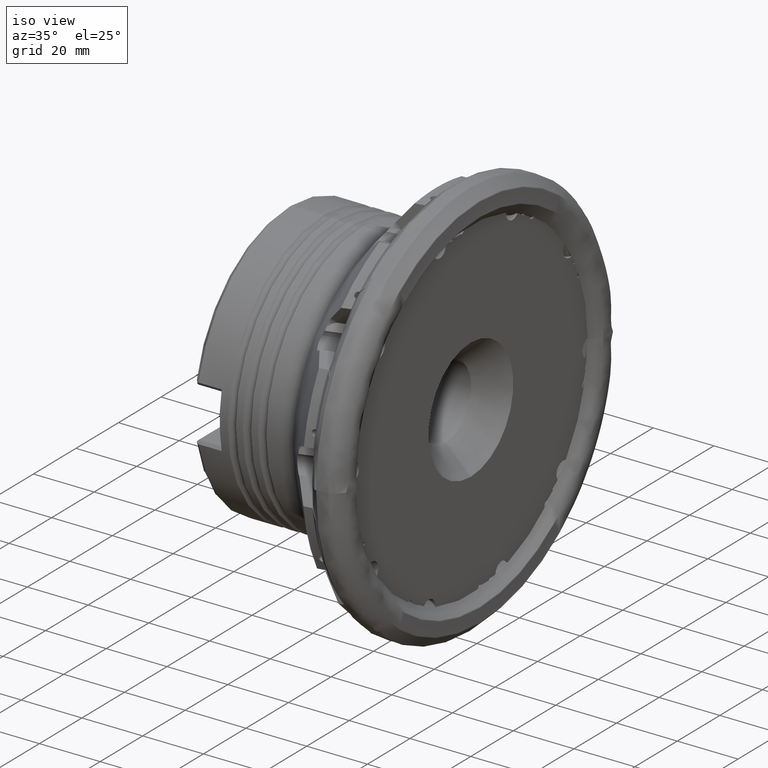
[diagram: clean part render]
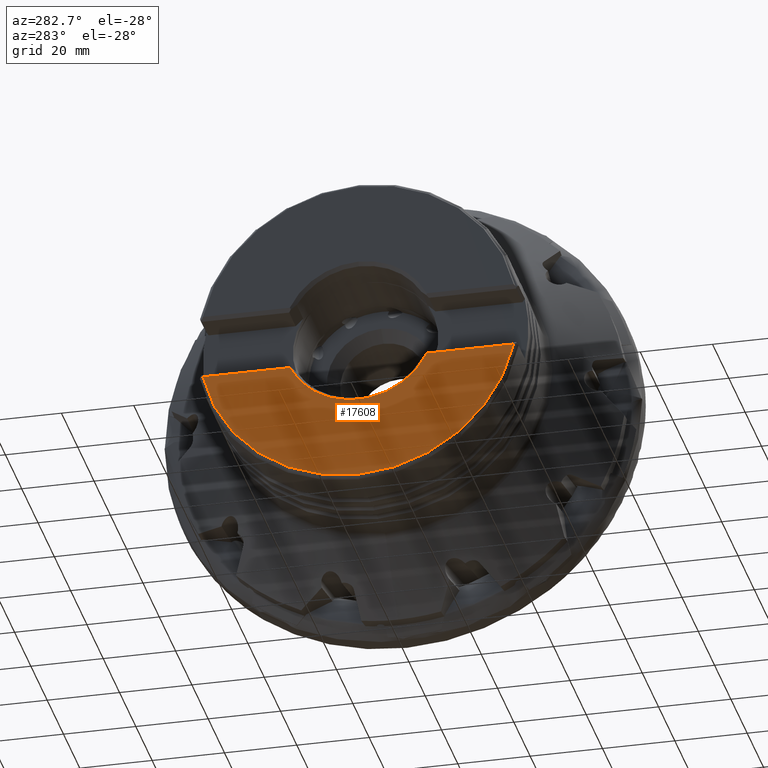
[diagram: tour spotlight — one face highlighted and labeled with its STEP entity id]
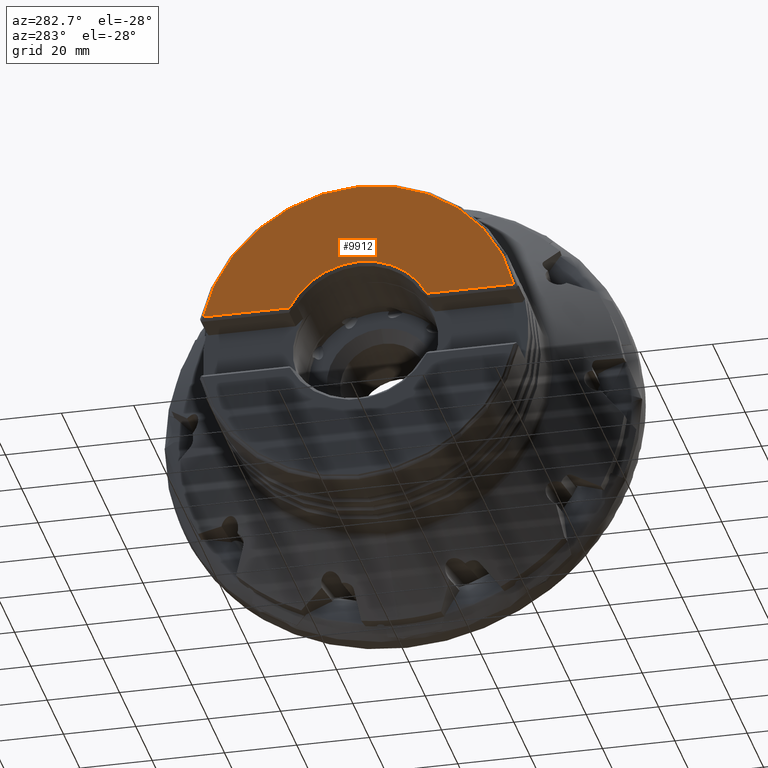
[diagram: tour spotlight — one face highlighted and labeled with its STEP entity id]
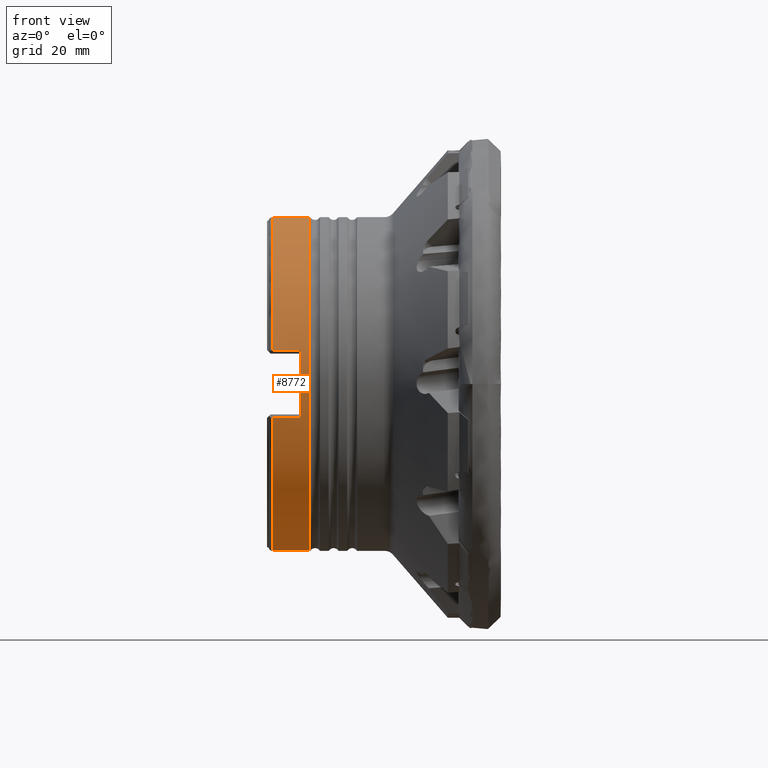
[diagram: tour spotlight — one face highlighted and labeled with its STEP entity id]
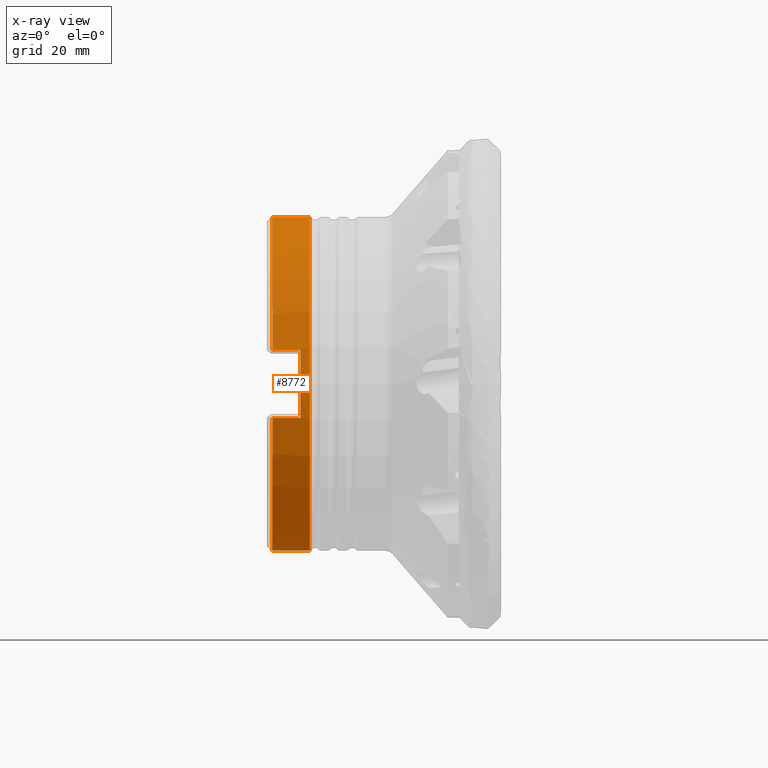
[diagram: x-ray of the same camera — body ghosted, this tour face saturated]
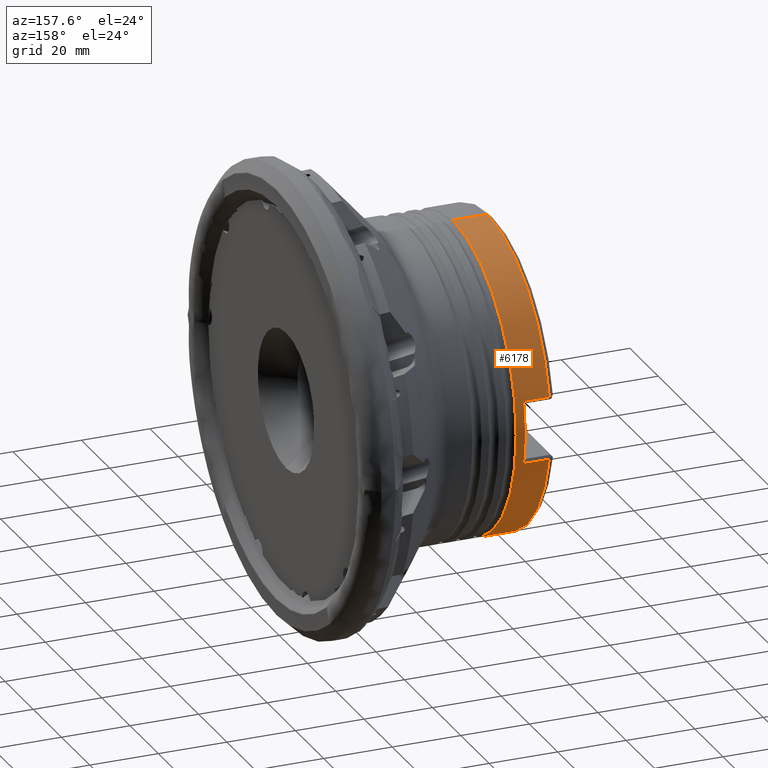
[diagram: tour spotlight — one face highlighted and labeled with its STEP entity id]
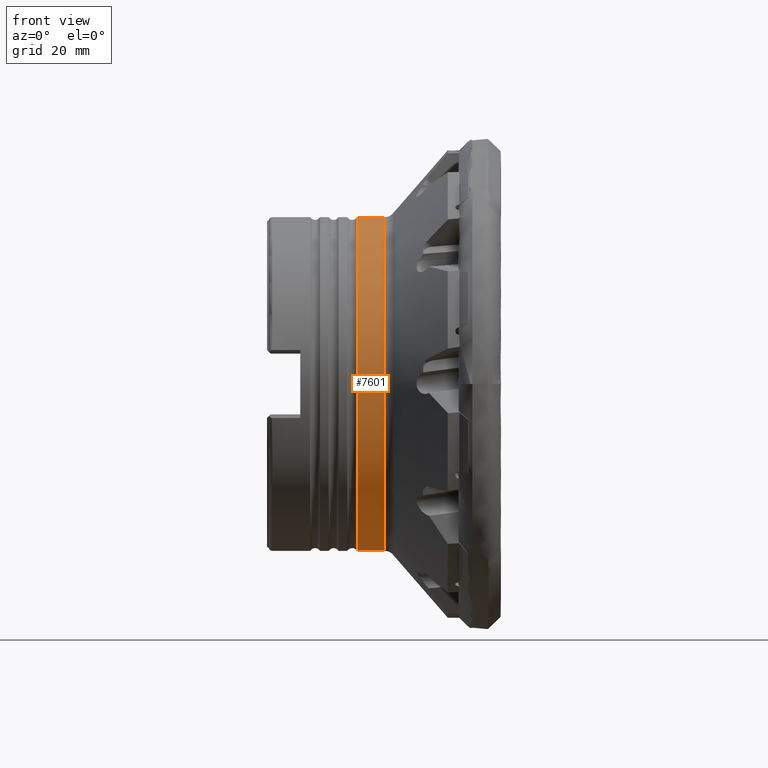
[diagram: tour spotlight — one face highlighted and labeled with its STEP entity id]
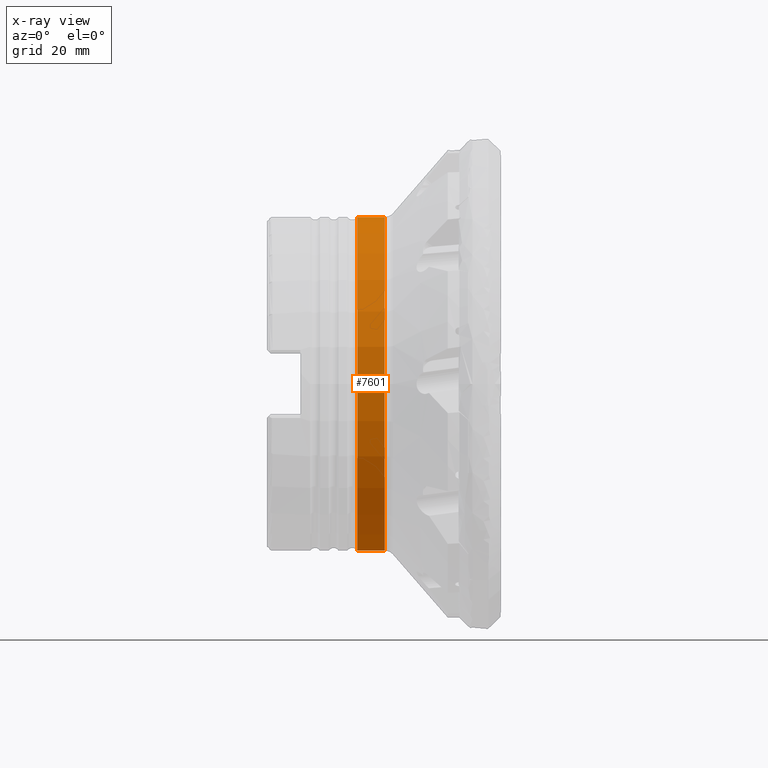
[diagram: x-ray of the same camera — body ghosted, this tour face saturated]
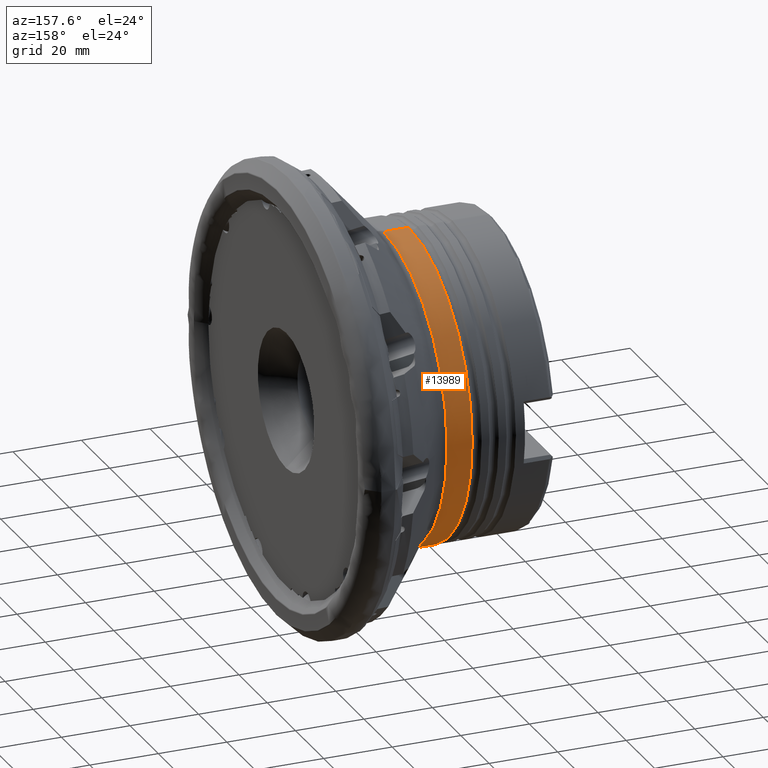
[diagram: tour spotlight — one face highlighted and labeled with its STEP entity id]
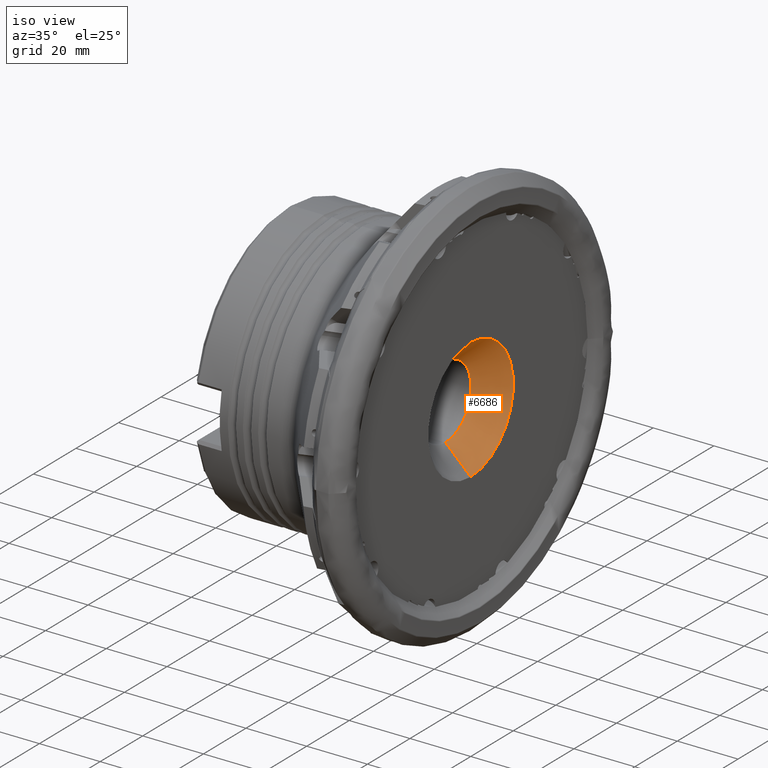
[diagram: tour spotlight — one face highlighted and labeled with its STEP entity id]
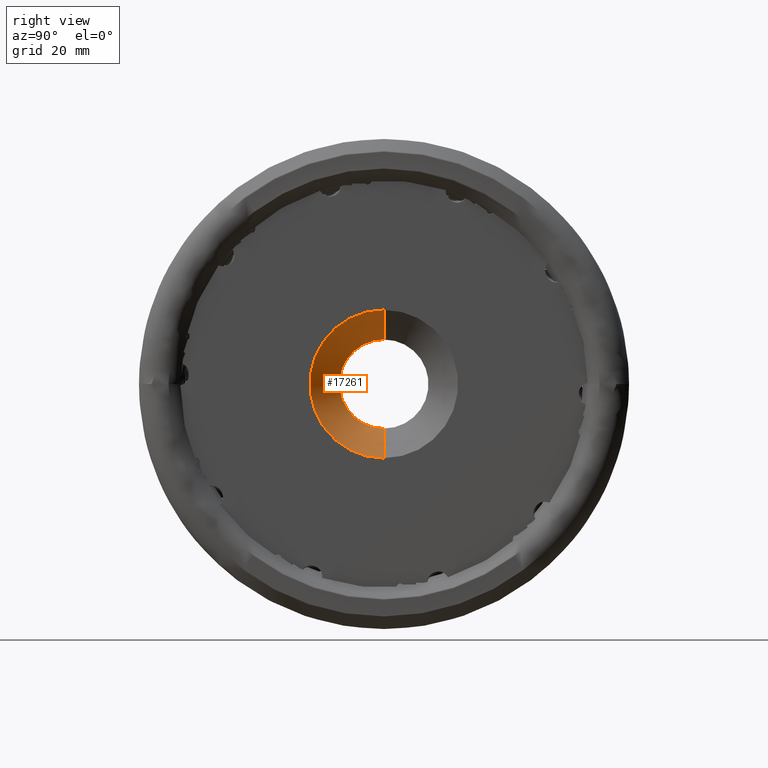
[diagram: tour spotlight — one face highlighted and labeled with its STEP entity id]
A machine part: a face-by-face anatomy tour. The part has 475 B-rep faces; the first image is the clean iso view, then the 8 largest visible faces are spotlighted one at a time (largest first), each with its STEP entity span.

Face 1 — auxiliary view, entity #17608. In plain terms, the highlighted planar face has unit normal (-1, 0, 0).
Definition (entity closure, byte-faithful):
#270 = AXIS2_PLACEMENT_3D ( 'NONE', #11164, #1164, #12859 ) ;
#672 = VERTEX_POINT ( 'NONE', #20724 ) ;
#1164 = DIRECTION ( 'NONE',  ( 1.000000000000000000, -0.0000000000000000000, -0.0000000000000000000 ) ) ;
#1887 = PLANE ( 'NONE',  #18676 ) ;
#2067 = EDGE_CURVE ( 'NONE', #11351, #8416, #9161, .T. ) ;
#2395 = VERTEX_POINT ( 'NONE', #8153 ) ;
#3300 = EDGE_CURVE ( 'NONE', #672, #2395, #17776, .T. ) ;
#3531 = DIRECTION ( 'NONE',  ( 1.000000000000000000, -0.0000000000000000000, -0.0000000000000000000 ) ) ;
#3575 = VERTEX_POINT ( 'NONE', #10758 ) ;
#4733 = EDGE_LOOP ( 'NONE', ( #20504, #21627, #7333, #9236, #13427 ) ) ;
#5115 = CARTESIAN_POINT ( 'NONE',  ( -62.09999999999999400, -54.99999999999999300, -9.149999999999980800 ) ) ;
#5492 = AXIS2_PLACEMENT_3D ( 'NONE', #13574, #3531, #15265 ) ;
#7333 = ORIENTED_EDGE ( 'NONE', *, *, #3300, .T. ) ;
#7413 = CIRCLE ( 'NONE', #15170, 43.92228756555322600 ) ;
#7450 = EDGE_CURVE ( 'NONE', #11351, #3575, #7971, .T. ) ;
#7971 = CIRCLE ( 'NONE', #5492, 43.92228756555322600 ) ;
#8153 = CARTESIAN_POINT ( 'NONE',  ( -62.09999999999999400, 42.95864109806090900, -9.149999999999980800 ) ) ;
#8416 = VERTEX_POINT ( 'NONE', #12733 ) ;
#8577 = DIRECTION ( 'NONE',  ( -1.000000000000000000, 0.0000000000000000000, 0.0000000000000000000 ) ) ;
#8700 = DIRECTION ( 'NONE',  ( 1.000000000000000000, -0.0000000000000000000, -0.0000000000000000000 ) ) ;
#9161 = LINE ( 'NONE', #5115, #13112 ) ;
#9236 = ORIENTED_EDGE ( 'NONE', *, *, #18535, .F. ) ;
#9252 = CARTESIAN_POINT ( 'NONE',  ( -62.09999999999999400, -42.95864109805094700, -9.149999999999980800 ) ) ;
#10758 = CARTESIAN_POINT ( 'NONE',  ( -62.09999999999999400, 0.0000000000000000000, -43.92228756555322600 ) ) ;
#11164 = CARTESIAN_POINT ( 'NONE',  ( -62.09999999999999400, 0.0000000000000000000, 0.0000000000000000000 ) ) ;
#11351 = VERTEX_POINT ( 'NONE', #9252 ) ;
#12733 = CARTESIAN_POINT ( 'NONE',  ( -62.09999999999999400, -18.92955691504690600, -9.149999999999980800 ) ) ;
#12859 = DIRECTION ( 'NONE',  ( 0.0000000000000000000, 0.0000000000000000000, 1.000000000000000000 ) ) ;
#13112 = VECTOR ( 'NONE', #13481, 1000.000000000000000 ) ;
#13402 = CARTESIAN_POINT ( 'NONE',  ( -62.09999999999999400, -54.99999999999999300, -9.149999999999980800 ) ) ;
#13427 = ORIENTED_EDGE ( 'NONE', *, *, #7450, .F. ) ;
#13481 = DIRECTION ( 'NONE',  ( 0.0000000000000000000, 1.000000000000000000, 0.0000000000000000000 ) ) ;
#13574 = CARTESIAN_POINT ( 'NONE',  ( -62.09999999999999400, 0.0000000000000000000, 0.0000000000000000000 ) ) ;
#15098 = DIRECTION ( 'NONE',  ( 0.0000000000000000000, 1.000000000000000000, 0.0000000000000000000 ) ) ;
#15170 = AXIS2_PLACEMENT_3D ( 'NONE', #18771, #8700, #20477 ) ;
#15265 = DIRECTION ( 'NONE',  ( 0.0000000000000000000, 0.0000000000000000000, 1.000000000000000000 ) ) ;
#15333 = FACE_OUTER_BOUND ( 'NONE', #4733, .T. ) ;
#15501 = EDGE_CURVE ( 'NONE', #8416, #672, #19882, .T. ) ;
#16951 = CARTESIAN_POINT ( 'NONE',  ( -62.09999999999999400, 0.0000000000000000000, 0.0000000000000000000 ) ) ;
#17608 = ADVANCED_FACE ( 'NONE', ( #15333 ), #1887, .T. ) ;
#17776 = LINE ( 'NONE', #13402, #21763 ) ;
#18535 = EDGE_CURVE ( 'NONE', #3575, #2395, #7413, .T. ) ;
#18676 = AXIS2_PLACEMENT_3D ( 'NONE', #16951, #8577, #20386 ) ;
#18771 = CARTESIAN_POINT ( 'NONE',  ( -62.09999999999999400, 0.0000000000000000000, 0.0000000000000000000 ) ) ;
#19882 = CIRCLE ( 'NONE', #270, 21.02499999999999500 ) ;
#20386 = DIRECTION ( 'NONE',  ( 0.0000000000000000000, 0.0000000000000000000, 1.000000000000000000 ) ) ;
#20477 = DIRECTION ( 'NONE',  ( 0.0000000000000000000, 0.0000000000000000000, 1.000000000000000000 ) ) ;
#20504 = ORIENTED_EDGE ( 'NONE', *, *, #2067, .T. ) ;
#20724 = CARTESIAN_POINT ( 'NONE',  ( -62.09999999999999400, 18.92955691504690600, -9.149999999999980800 ) ) ;
#21627 = ORIENTED_EDGE ( 'NONE', *, *, #15501, .T. ) ;
#21763 = VECTOR ( 'NONE', #15098, 1000.000000000000000 ) ;

Face 2 — auxiliary view, entity #9912. In plain terms, the highlighted planar face has unit normal (-1, 0, 0).
Definition (entity closure, byte-faithful):
#1453 = CIRCLE ( 'NONE', #8033, 43.92228756555322600 ) ;
#2076 = AXIS2_PLACEMENT_3D ( 'NONE', #17017, #20450, #10371 ) ;
#2215 = CARTESIAN_POINT ( 'NONE',  ( -62.09999999999999400, 0.0000000000000000000, 0.0000000000000000000 ) ) ;
#2895 = CARTESIAN_POINT ( 'NONE',  ( -62.09999999999999400, -18.92955691504689100, 9.150000000000009200 ) ) ;
#2985 = CARTESIAN_POINT ( 'NONE',  ( -62.09999999999998000, 42.95864109805096100, 9.149999999999991500 ) ) ;
#3258 = CIRCLE ( 'NONE', #9041, 21.02499999999999500 ) ;
#3439 = EDGE_CURVE ( 'NONE', #6063, #16519, #4423, .T. ) ;
#3446 = ORIENTED_EDGE ( 'NONE', *, *, #5107, .T. ) ;
#3551 = CARTESIAN_POINT ( 'NONE',  ( -62.09999999999999400, 0.0000000000000000000, 0.0000000000000000000 ) ) ;
#3871 = DIRECTION ( 'NONE',  ( 0.0000000000000000000, -8.881784197001252300E-016, 1.000000000000000000 ) ) ;
#4423 = CIRCLE ( 'NONE', #9093, 21.02499999999999500 ) ;
#5107 = EDGE_CURVE ( 'NONE', #15570, #9397, #9630, .T. ) ;
#5143 = EDGE_CURVE ( 'NONE', #9783, #6063, #13557, .T. ) ;
#5153 = VECTOR ( 'NONE', #7811, 1000.000000000000000 ) ;
#5222 = DIRECTION ( 'NONE',  ( 0.0000000000000000000, 0.0000000000000000000, 1.000000000000000000 ) ) ;
#6063 = VERTEX_POINT ( 'NONE', #14031 ) ;
#6137 = CARTESIAN_POINT ( 'NONE',  ( -62.09999999999999400, -54.99999999999999300, 9.150000000000009200 ) ) ;
#7165 = EDGE_LOOP ( 'NONE', ( #3446, #12222, #17603, #9837, #20606 ) ) ;
#7811 = DIRECTION ( 'NONE',  ( 0.0000000000000000000, -1.000000000000000000, 0.0000000000000000000 ) ) ;
#8033 = AXIS2_PLACEMENT_3D ( 'NONE', #3551, #15293, #5222 ) ;
#9041 = AXIS2_PLACEMENT_3D ( 'NONE', #20068, #9982, #21743 ) ;
#9084 = VECTOR ( 'NONE', #17935, 1000.000000000000000 ) ;
#9093 = AXIS2_PLACEMENT_3D ( 'NONE', #2215, #13913, #3871 ) ;
#9397 = VERTEX_POINT ( 'NONE', #18309 ) ;
#9630 = LINE ( 'NONE', #6137, #5153 ) ;
#9783 = VERTEX_POINT ( 'NONE', #2985 ) ;
#9837 = ORIENTED_EDGE ( 'NONE', *, *, #3439, .T. ) ;
#9912 = ADVANCED_FACE ( 'NONE', ( #13645 ), #11989, .T. ) ;
#9982 = DIRECTION ( 'NONE',  ( 1.000000000000000000, -0.0000000000000000000, -0.0000000000000000000 ) ) ;
#10371 = DIRECTION ( 'NONE',  ( 0.0000000000000000000, 0.0000000000000000000, 1.000000000000000000 ) ) ;
#11989 = PLANE ( 'NONE',  #2076 ) ;
#12222 = ORIENTED_EDGE ( 'NONE', *, *, #21305, .F. ) ;
#13557 = LINE ( 'NONE', #16261, #9084 ) ;
#13645 = FACE_OUTER_BOUND ( 'NONE', #7165, .T. ) ;
#13913 = DIRECTION ( 'NONE',  ( 1.000000000000000000, -0.0000000000000000000, -0.0000000000000000000 ) ) ;
#14031 = CARTESIAN_POINT ( 'NONE',  ( -62.09999999999999400, 18.92955691504689100, 9.150000000000009200 ) ) ;
#14479 = CARTESIAN_POINT ( 'NONE',  ( -62.09999999999999400, 0.0000000000000000000, 21.02499999999999500 ) ) ;
#15293 = DIRECTION ( 'NONE',  ( 1.000000000000000000, -0.0000000000000000000, -0.0000000000000000000 ) ) ;
#15570 = VERTEX_POINT ( 'NONE', #2895 ) ;
#16261 = CARTESIAN_POINT ( 'NONE',  ( -62.09999999999999400, -54.99999999999999300, 9.150000000000009200 ) ) ;
#16519 = VERTEX_POINT ( 'NONE', #14479 ) ;
#17017 = CARTESIAN_POINT ( 'NONE',  ( -62.09999999999999400, 0.0000000000000000000, 0.0000000000000000000 ) ) ;
#17603 = ORIENTED_EDGE ( 'NONE', *, *, #5143, .T. ) ;
#17935 = DIRECTION ( 'NONE',  ( 0.0000000000000000000, -1.000000000000000000, 0.0000000000000000000 ) ) ;
#18309 = CARTESIAN_POINT ( 'NONE',  ( -62.09999999999999400, -42.95864109805094000, 9.150000000000009200 ) ) ;
#20068 = CARTESIAN_POINT ( 'NONE',  ( -62.09999999999999400, 0.0000000000000000000, 0.0000000000000000000 ) ) ;
#20450 = DIRECTION ( 'NONE',  ( -1.000000000000000000, 0.0000000000000000000, 0.0000000000000000000 ) ) ;
#20606 = ORIENTED_EDGE ( 'NONE', *, *, #21632, .T. ) ;
#21305 = EDGE_CURVE ( 'NONE', #9783, #9397, #1453, .T. ) ;
#21632 = EDGE_CURVE ( 'NONE', #16519, #15570, #3258, .T. ) ;
#21743 = DIRECTION ( 'NONE',  ( 0.0000000000000000000, 0.0000000000000000000, 1.000000000000000000 ) ) ;

Face 3 — front view, entity #8772. An x-ray twin of the same camera follows (body ghosted, this face saturated) — the face is partly hidden behind the body. In plain terms, the highlighted cylindrical surface (partial cylindrical patch) has radius 45 mm, axis along (1, -0, -0).
Definition (entity closure, byte-faithful):
#563 = VERTEX_POINT ( 'NONE', #11506 ) ;
#610 = CARTESIAN_POINT ( 'NONE',  ( -60.64999999999999900, 0.0000000000000000000, -44.99999999999999300 ) ) ;
#730 = CARTESIAN_POINT ( 'NONE',  ( 0.0000000000000000000, 0.0000000000000000000, -44.99999999999998600 ) ) ;
#1050 = CARTESIAN_POINT ( 'NONE',  ( 0.0000000000000000000, -44.05565060447368400, -9.170586121755587100 ) ) ;
#1411 = VERTEX_POINT ( 'NONE', #610 ) ;
#1827 = CARTESIAN_POINT ( 'NONE',  ( -60.64999999999999900, -44.05565060447369100, -9.170586121755592400 ) ) ;
#1950 = ORIENTED_EDGE ( 'NONE', *, *, #5496, .F. ) ;
#2478 = CARTESIAN_POINT ( 'NONE',  ( -60.64999999999999900, -44.05565060447369800, 9.170586121755565800 ) ) ;
#2638 = LINE ( 'NONE', #730, #15485 ) ;
#2856 = CARTESIAN_POINT ( 'NONE',  ( 0.0000000000000000000, -44.05565060447368400, 9.170586121755564000 ) ) ;
#3108 = AXIS2_PLACEMENT_3D ( 'NONE', #18941, #8869, #20663 ) ;
#3516 = CIRCLE ( 'NONE', #21414, 44.99999999999998600 ) ;
#4246 = EDGE_LOOP ( 'NONE', ( #7892, #6962, #13640, #1950, #18347, #6826, #4925, #18920 ) ) ;
#4274 = LINE ( 'NONE', #2856, #12478 ) ;
#4605 = CARTESIAN_POINT ( 'NONE',  ( -53.14999999999999900, -44.05565060447369100, 9.170586121755564000 ) ) ;
#4668 = DIRECTION ( 'NONE',  ( 1.000000000000000000, -0.0000000000000000000, -0.0000000000000000000 ) ) ;
#4908 = DIRECTION ( 'NONE',  ( 1.000000000000000000, -0.0000000000000000000, -0.0000000000000000000 ) ) ;
#4925 = ORIENTED_EDGE ( 'NONE', *, *, #10007, .T. ) ;
#5496 = EDGE_CURVE ( 'NONE', #6556, #6597, #9881, .T. ) ;
#5998 = EDGE_CURVE ( 'NONE', #15421, #19253, #17974, .T. ) ;
#6070 = EDGE_CURVE ( 'NONE', #15421, #563, #16921, .T. ) ;
#6499 = AXIS2_PLACEMENT_3D ( 'NONE', #9749, #21514, #11429 ) ;
#6556 = VERTEX_POINT ( 'NONE', #7809 ) ;
#6597 = VERTEX_POINT ( 'NONE', #4605 ) ;
#6826 = ORIENTED_EDGE ( 'NONE', *, *, #10715, .T. ) ;
#6962 = ORIENTED_EDGE ( 'NONE', *, *, #5998, .T. ) ;
#7288 = CARTESIAN_POINT ( 'NONE',  ( -53.14999999999999900, 0.0000000000000000000, 0.0000000000000000000 ) ) ;
#7381 = VECTOR ( 'NONE', #7527, 1000.000000000000000 ) ;
#7527 = DIRECTION ( 'NONE',  ( -1.000000000000000000, 0.0000000000000000000, 0.0000000000000000000 ) ) ;
#7809 = CARTESIAN_POINT ( 'NONE',  ( -53.14999999999999900, -44.05565060447368400, -9.170586121755587100 ) ) ;
#7892 = ORIENTED_EDGE ( 'NONE', *, *, #6070, .F. ) ;
#7997 = EDGE_CURVE ( 'NONE', #6556, #8145, #20294, .T. ) ;
#8145 = VERTEX_POINT ( 'NONE', #1827 ) ;
#8338 = CARTESIAN_POINT ( 'NONE',  ( -50.55978721798717100, 0.0000000000000000000, -44.99999999999998600 ) ) ;
#8772 = ADVANCED_FACE ( 'NONE', ( #17325 ), #12380, .T. ) ;
#8869 = DIRECTION ( 'NONE',  ( 1.000000000000000000, -0.0000000000000000000, -0.0000000000000000000 ) ) ;
#8977 = DIRECTION ( 'NONE',  ( 0.0000000000000000000, 0.0000000000000000000, -1.000000000000000000 ) ) ;
#9749 = CARTESIAN_POINT ( 'NONE',  ( -60.64999999999999900, 0.0000000000000000000, 0.0000000000000000000 ) ) ;
#9881 = CIRCLE ( 'NONE', #10680, 44.99999999999998600 ) ;
#10007 = EDGE_CURVE ( 'NONE', #1411, #21668, #2638, .T. ) ;
#10680 = AXIS2_PLACEMENT_3D ( 'NONE', #7288, #19052, #8977 ) ;
#10715 = EDGE_CURVE ( 'NONE', #8145, #1411, #17004, .T. ) ;
#10880 = DIRECTION ( 'NONE',  ( 0.0000000000000000000, 0.0000000000000000000, -1.000000000000000000 ) ) ;
#11429 = DIRECTION ( 'NONE',  ( 0.0000000000000000000, 0.0000000000000000000, -1.000000000000000000 ) ) ;
#11506 = CARTESIAN_POINT ( 'NONE',  ( -50.55978721798717100, 5.510910596163087200E-015, 44.99999999999998600 ) ) ;
#12380 = CYLINDRICAL_SURFACE ( 'NONE', #13834, 44.99999999999998600 ) ;
#12426 = CARTESIAN_POINT ( 'NONE',  ( 0.0000000000000000000, 5.510910596163087200E-015, 44.99999999999998600 ) ) ;
#12478 = VECTOR ( 'NONE', #4668, 1000.000000000000000 ) ;
#13016 = VECTOR ( 'NONE', #15784, 1000.000000000000000 ) ;
#13640 = ORIENTED_EDGE ( 'NONE', *, *, #18865, .T. ) ;
#13834 = AXIS2_PLACEMENT_3D ( 'NONE', #17521, #20961, #10880 ) ;
#14956 = CARTESIAN_POINT ( 'NONE',  ( -50.55978721798717100, 0.0000000000000000000, 0.0000000000000000000 ) ) ;
#15421 = VERTEX_POINT ( 'NONE', #19392 ) ;
#15485 = VECTOR ( 'NONE', #20819, 1000.000000000000000 ) ;
#15784 = DIRECTION ( 'NONE',  ( 1.000000000000000000, -0.0000000000000000000, -0.0000000000000000000 ) ) ;
#16639 = DIRECTION ( 'NONE',  ( 0.0000000000000000000, 0.0000000000000000000, -1.000000000000000000 ) ) ;
#16921 = LINE ( 'NONE', #12426, #13016 ) ;
#17004 = CIRCLE ( 'NONE', #6499, 44.99999999999999300 ) ;
#17325 = FACE_OUTER_BOUND ( 'NONE', #4246, .T. ) ;
#17521 = CARTESIAN_POINT ( 'NONE',  ( 0.0000000000000000000, 0.0000000000000000000, 0.0000000000000000000 ) ) ;
#17974 = CIRCLE ( 'NONE', #3108, 44.99999999999999300 ) ;
#18347 = ORIENTED_EDGE ( 'NONE', *, *, #7997, .T. ) ;
#18865 = EDGE_CURVE ( 'NONE', #19253, #6597, #4274, .T. ) ;
#18920 = ORIENTED_EDGE ( 'NONE', *, *, #19836, .F. ) ;
#18941 = CARTESIAN_POINT ( 'NONE',  ( -60.64999999999999900, 0.0000000000000000000, 0.0000000000000000000 ) ) ;
#19052 = DIRECTION ( 'NONE',  ( -1.000000000000000000, -0.0000000000000000000, 0.0000000000000000000 ) ) ;
#19253 = VERTEX_POINT ( 'NONE', #2478 ) ;
#19392 = CARTESIAN_POINT ( 'NONE',  ( -60.64999999999999900, 5.510910596163088800E-015, 44.99999999999999300 ) ) ;
#19836 = EDGE_CURVE ( 'NONE', #563, #21668, #3516, .T. ) ;
#20294 = LINE ( 'NONE', #1050, #7381 ) ;
#20663 = DIRECTION ( 'NONE',  ( 0.0000000000000000000, 0.0000000000000000000, -1.000000000000000000 ) ) ;
#20819 = DIRECTION ( 'NONE',  ( 1.000000000000000000, -0.0000000000000000000, -0.0000000000000000000 ) ) ;
#20961 = DIRECTION ( 'NONE',  ( 1.000000000000000000, -0.0000000000000000000, -0.0000000000000000000 ) ) ;
#21414 = AXIS2_PLACEMENT_3D ( 'NONE', #14956, #4908, #16639 ) ;
#21514 = DIRECTION ( 'NONE',  ( 1.000000000000000000, -0.0000000000000000000, -0.0000000000000000000 ) ) ;
#21668 = VERTEX_POINT ( 'NONE', #8338 ) ;

Face 4 — auxiliary view, entity #6178. In plain terms, the highlighted cylindrical surface (partial cylindrical patch) has radius 45 mm, axis along (1, -0, -0).
Definition (entity closure, byte-faithful):
#143 = EDGE_CURVE ( 'NONE', #14798, #14877, #19430, .T. ) ;
#563 = VERTEX_POINT ( 'NONE', #11506 ) ;
#610 = CARTESIAN_POINT ( 'NONE',  ( -60.64999999999999900, 0.0000000000000000000, -44.99999999999999300 ) ) ;
#730 = CARTESIAN_POINT ( 'NONE',  ( 0.0000000000000000000, 0.0000000000000000000, -44.99999999999998600 ) ) ;
#1275 = DIRECTION ( 'NONE',  ( -1.000000000000000000, -0.0000000000000000000, 0.0000000000000000000 ) ) ;
#1411 = VERTEX_POINT ( 'NONE', #610 ) ;
#2135 = VECTOR ( 'NONE', #6355, 1000.000000000000000 ) ;
#2638 = LINE ( 'NONE', #730, #15485 ) ;
#2719 = ORIENTED_EDGE ( 'NONE', *, *, #15052, .T. ) ;
#2758 = ORIENTED_EDGE ( 'NONE', *, *, #5145, .F. ) ;
#3079 = EDGE_CURVE ( 'NONE', #21668, #563, #5981, .T. ) ;
#3344 = CARTESIAN_POINT ( 'NONE',  ( -60.64999999999999900, 0.0000000000000000000, 0.0000000000000000000 ) ) ;
#4265 = CARTESIAN_POINT ( 'NONE',  ( 0.0000000000000000000, 0.0000000000000000000, 0.0000000000000000000 ) ) ;
#4713 = ORIENTED_EDGE ( 'NONE', *, *, #13566, .T. ) ;
#5014 = DIRECTION ( 'NONE',  ( 0.0000000000000000000, 0.0000000000000000000, -1.000000000000000000 ) ) ;
#5145 = EDGE_CURVE ( 'NONE', #11309, #14877, #10140, .T. ) ;
#5414 = ORIENTED_EDGE ( 'NONE', *, *, #10007, .F. ) ;
#5481 = DIRECTION ( 'NONE',  ( 1.000000000000000000, -0.0000000000000000000, -0.0000000000000000000 ) ) ;
#5934 = DIRECTION ( 'NONE',  ( 0.0000000000000000000, 0.0000000000000000000, -1.000000000000000000 ) ) ;
#5981 = CIRCLE ( 'NONE', #12901, 44.99999999999998600 ) ;
#6070 = EDGE_CURVE ( 'NONE', #15421, #563, #16921, .T. ) ;
#6178 = ADVANCED_FACE ( 'NONE', ( #6440 ), #19317, .T. ) ;
#6181 = ORIENTED_EDGE ( 'NONE', *, *, #3079, .F. ) ;
#6355 = DIRECTION ( 'NONE',  ( 1.000000000000000000, -0.0000000000000000000, -0.0000000000000000000 ) ) ;
#6440 = FACE_OUTER_BOUND ( 'NONE', #16031, .T. ) ;
#7238 = VECTOR ( 'NONE', #13103, 1000.000000000000000 ) ;
#7366 = CARTESIAN_POINT ( 'NONE',  ( -60.64999999999999900, 44.05565060447369100, -9.170586121755588800 ) ) ;
#7704 = AXIS2_PLACEMENT_3D ( 'NONE', #11266, #1275, #12978 ) ;
#7939 = AXIS2_PLACEMENT_3D ( 'NONE', #19474, #9410, #21175 ) ;
#8338 = CARTESIAN_POINT ( 'NONE',  ( -50.55978721798717100, 0.0000000000000000000, -44.99999999999998600 ) ) ;
#9044 = VERTEX_POINT ( 'NONE', #15416 ) ;
#9325 = DIRECTION ( 'NONE',  ( 1.000000000000000000, -0.0000000000000000000, -0.0000000000000000000 ) ) ;
#9410 = DIRECTION ( 'NONE',  ( 1.000000000000000000, -0.0000000000000000000, -0.0000000000000000000 ) ) ;
#9815 = ORIENTED_EDGE ( 'NONE', *, *, #143, .T. ) ;
#10007 = EDGE_CURVE ( 'NONE', #1411, #21668, #2638, .T. ) ;
#10140 = CIRCLE ( 'NONE', #7704, 44.99999999999998600 ) ;
#11266 = CARTESIAN_POINT ( 'NONE',  ( -53.14999999999999900, 0.0000000000000000000, 0.0000000000000000000 ) ) ;
#11309 = VERTEX_POINT ( 'NONE', #14100 ) ;
#11408 = CARTESIAN_POINT ( 'NONE',  ( 0.0000000000000000000, 44.05565060447368400, 9.170586121755564000 ) ) ;
#11506 = CARTESIAN_POINT ( 'NONE',  ( -50.55978721798717100, 5.510910596163087200E-015, 44.99999999999998600 ) ) ;
#12426 = CARTESIAN_POINT ( 'NONE',  ( 0.0000000000000000000, 5.510910596163087200E-015, 44.99999999999998600 ) ) ;
#12901 = AXIS2_PLACEMENT_3D ( 'NONE', #15554, #5481, #17211 ) ;
#12978 = DIRECTION ( 'NONE',  ( 0.0000000000000000000, -5.329070518200750600E-015, -1.000000000000000000 ) ) ;
#13016 = VECTOR ( 'NONE', #15784, 1000.000000000000000 ) ;
#13103 = DIRECTION ( 'NONE',  ( -1.000000000000000000, 0.0000000000000000000, 0.0000000000000000000 ) ) ;
#13566 = EDGE_CURVE ( 'NONE', #11309, #9044, #20154, .T. ) ;
#13948 = EDGE_CURVE ( 'NONE', #9044, #15421, #21458, .T. ) ;
#14100 = CARTESIAN_POINT ( 'NONE',  ( -53.14999999999999900, 44.05565060447369100, 9.170586121755564000 ) ) ;
#14798 = VERTEX_POINT ( 'NONE', #7366 ) ;
#14877 = VERTEX_POINT ( 'NONE', #19499 ) ;
#15052 = EDGE_CURVE ( 'NONE', #1411, #14798, #15135, .T. ) ;
#15072 = DIRECTION ( 'NONE',  ( 1.000000000000000000, -0.0000000000000000000, -0.0000000000000000000 ) ) ;
#15135 = CIRCLE ( 'NONE', #17926, 44.99999999999999300 ) ;
#15416 = CARTESIAN_POINT ( 'NONE',  ( -60.64999999999999900, 44.05565060447369800, 9.170586121755565800 ) ) ;
#15421 = VERTEX_POINT ( 'NONE', #19392 ) ;
#15485 = VECTOR ( 'NONE', #20819, 1000.000000000000000 ) ;
#15554 = CARTESIAN_POINT ( 'NONE',  ( -50.55978721798717100, 0.0000000000000000000, 0.0000000000000000000 ) ) ;
#15784 = DIRECTION ( 'NONE',  ( 1.000000000000000000, -0.0000000000000000000, -0.0000000000000000000 ) ) ;
#16031 = EDGE_LOOP ( 'NONE', ( #18069, #17801, #6181, #5414, #2719, #9815, #2758, #4713 ) ) ;
#16474 = CARTESIAN_POINT ( 'NONE',  ( 0.0000000000000000000, 44.05565060447368400, -9.170586121755587100 ) ) ;
#16921 = LINE ( 'NONE', #12426, #13016 ) ;
#17211 = DIRECTION ( 'NONE',  ( 0.0000000000000000000, 0.0000000000000000000, -1.000000000000000000 ) ) ;
#17690 = AXIS2_PLACEMENT_3D ( 'NONE', #4265, #9325, #5934 ) ;
#17801 = ORIENTED_EDGE ( 'NONE', *, *, #6070, .T. ) ;
#17926 = AXIS2_PLACEMENT_3D ( 'NONE', #3344, #15072, #5014 ) ;
#18069 = ORIENTED_EDGE ( 'NONE', *, *, #13948, .T. ) ;
#19317 = CYLINDRICAL_SURFACE ( 'NONE', #17690, 44.99999999999998600 ) ;
#19392 = CARTESIAN_POINT ( 'NONE',  ( -60.64999999999999900, 5.510910596163088800E-015, 44.99999999999999300 ) ) ;
#19430 = LINE ( 'NONE', #16474, #2135 ) ;
#19474 = CARTESIAN_POINT ( 'NONE',  ( -60.64999999999999900, 0.0000000000000000000, 0.0000000000000000000 ) ) ;
#19499 = CARTESIAN_POINT ( 'NONE',  ( -53.14999999999999900, 44.05565060447368400, -9.170586121755587100 ) ) ;
#20154 = LINE ( 'NONE', #11408, #7238 ) ;
#20819 = DIRECTION ( 'NONE',  ( 1.000000000000000000, -0.0000000000000000000, -0.0000000000000000000 ) ) ;
#21175 = DIRECTION ( 'NONE',  ( 0.0000000000000000000, 0.0000000000000000000, -1.000000000000000000 ) ) ;
#21458 = CIRCLE ( 'NONE', #7939, 44.99999999999999300 ) ;
#21668 = VERTEX_POINT ( 'NONE', #8338 ) ;

Face 5 — front view, entity #7601. An x-ray twin of the same camera follows (body ghosted, this face saturated) — the face is partly hidden behind the body. In plain terms, the highlighted cylindrical surface (partial cylindrical patch) has radius 45 mm, axis along (1, -0, -0).
Definition (entity closure, byte-faithful):
#196 = ORIENTED_EDGE ( 'NONE', *, *, #10646, .F. ) ;
#933 = CYLINDRICAL_SURFACE ( 'NONE', #2849, 44.99999999999999300 ) ;
#1281 = DIRECTION ( 'NONE',  ( 1.000000000000000000, -0.0000000000000000000, -0.0000000000000000000 ) ) ;
#1452 = FACE_OUTER_BOUND ( 'NONE', #5234, .T. ) ;
#2186 = DIRECTION ( 'NONE',  ( 1.000000000000000000, -0.0000000000000000000, -0.0000000000000000000 ) ) ;
#2239 = CARTESIAN_POINT ( 'NONE',  ( 0.0000000000000000000, 0.0000000000000000000, 0.0000000000000000000 ) ) ;
#2602 = AXIS2_PLACEMENT_3D ( 'NONE', #12212, #2186, #13883 ) ;
#2726 = EDGE_CURVE ( 'Kante61', #10464, #7065, #14675, .T. ) ;
#2849 = AXIS2_PLACEMENT_3D ( 'NONE', #2239, #10564, #12264 ) ;
#4345 = CARTESIAN_POINT ( 'NONE',  ( -30.38992532624965300, 0.0000000000000000000, 0.0000000000000000000 ) ) ;
#4573 = EDGE_CURVE ( 'NONE', #13443, #7065, #12000, .T. ) ;
#4978 = ORIENTED_EDGE ( 'NONE', *, *, #2726, .F. ) ;
#5142 = CARTESIAN_POINT ( 'NONE',  ( -37.74021278201284000, 5.510910596163089600E-015, 45.00000000000000000 ) ) ;
#5219 = VECTOR ( 'NONE', #1281, 1000.000000000000000 ) ;
#5234 = EDGE_LOOP ( 'NONE', ( #196, #19868, #13619, #4978 ) ) ;
#6009 = DIRECTION ( 'NONE',  ( 0.0000000000000000000, 0.0000000000000000000, -1.000000000000000000 ) ) ;
#7065 = VERTEX_POINT ( 'NONE', #20597 ) ;
#7601 = ADVANCED_FACE ( 'NONE', ( #1452 ), #933, .T. ) ;
#7658 = CARTESIAN_POINT ( 'NONE',  ( -37.74021278201284000, 0.0000000000000000000, -45.00000000000000000 ) ) ;
#7671 = AXIS2_PLACEMENT_3D ( 'NONE', #4345, #16083, #6009 ) ;
#8619 = EDGE_CURVE ( 'NONE', #12457, #13443, #14484, .T. ) ;
#10464 = VERTEX_POINT ( 'NONE', #10639 ) ;
#10564 = DIRECTION ( 'NONE',  ( 1.000000000000000000, -0.0000000000000000000, -0.0000000000000000000 ) ) ;
#10639 = CARTESIAN_POINT ( 'NONE',  ( -30.38992532624965300, 5.510910596163088000E-015, 44.99999999999998600 ) ) ;
#10646 = EDGE_CURVE ( 'NONE', #12457, #10464, #18074, .T. ) ;
#12000 = LINE ( 'NONE', #15865, #20960 ) ;
#12212 = CARTESIAN_POINT ( 'NONE',  ( -37.74021278201284000, 0.0000000000000000000, 0.0000000000000000000 ) ) ;
#12264 = DIRECTION ( 'NONE',  ( 0.0000000000000000000, 0.0000000000000000000, -1.000000000000000000 ) ) ;
#12457 = VERTEX_POINT ( 'NONE', #5142 ) ;
#12568 = DIRECTION ( 'NONE',  ( 1.000000000000000000, -0.0000000000000000000, -0.0000000000000000000 ) ) ;
#13443 = VERTEX_POINT ( 'NONE', #7658 ) ;
#13619 = ORIENTED_EDGE ( 'NONE', *, *, #4573, .T. ) ;
#13883 = DIRECTION ( 'NONE',  ( 0.0000000000000000000, 0.0000000000000000000, -1.000000000000000000 ) ) ;
#14484 = CIRCLE ( 'NONE', #2602, 45.00000000000000000 ) ;
#14675 = CIRCLE ( 'NONE', #7671, 44.99999999999998600 ) ;
#15865 = CARTESIAN_POINT ( 'NONE',  ( 0.0000000000000000000, 0.0000000000000000000, -44.99999999999999300 ) ) ;
#16083 = DIRECTION ( 'NONE',  ( 1.000000000000000000, -0.0000000000000000000, -0.0000000000000000000 ) ) ;
#18074 = LINE ( 'NONE', #21373, #5219 ) ;
#19868 = ORIENTED_EDGE ( 'NONE', *, *, #8619, .T. ) ;
#20597 = CARTESIAN_POINT ( 'NONE',  ( -30.38992532624965300, 0.0000000000000000000, -44.99999999999998600 ) ) ;
#20960 = VECTOR ( 'NONE', #12568, 1000.000000000000000 ) ;
#21373 = CARTESIAN_POINT ( 'NONE',  ( 0.0000000000000000000, 5.510910596163088000E-015, 44.99999999999999300 ) ) ;

Face 6 — auxiliary view, entity #13989. In plain terms, the highlighted cylindrical surface (partial cylindrical patch) has radius 45 mm, axis along (1, -0, -0).
Definition (entity closure, byte-faithful):
#52 = DIRECTION ( 'NONE',  ( 0.0000000000000000000, 0.0000000000000000000, -1.000000000000000000 ) ) ;
#1044 = EDGE_CURVE ( 'NONE', #13443, #12457, #15235, .T. ) ;
#1166 = DIRECTION ( 'NONE',  ( 0.0000000000000000000, 0.0000000000000000000, -1.000000000000000000 ) ) ;
#1281 = DIRECTION ( 'NONE',  ( 1.000000000000000000, -0.0000000000000000000, -0.0000000000000000000 ) ) ;
#1584 = DIRECTION ( 'NONE',  ( 0.0000000000000000000, 0.0000000000000000000, -1.000000000000000000 ) ) ;
#1922 = ORIENTED_EDGE ( 'NONE', *, *, #17922, .F. ) ;
#3069 = FACE_OUTER_BOUND ( 'NONE', #16580, .T. ) ;
#4573 = EDGE_CURVE ( 'NONE', #13443, #7065, #12000, .T. ) ;
#5142 = CARTESIAN_POINT ( 'NONE',  ( -37.74021278201284000, 5.510910596163089600E-015, 45.00000000000000000 ) ) ;
#5219 = VECTOR ( 'NONE', #1281, 1000.000000000000000 ) ;
#7065 = VERTEX_POINT ( 'NONE', #20597 ) ;
#7658 = CARTESIAN_POINT ( 'NONE',  ( -37.74021278201284000, 0.0000000000000000000, -45.00000000000000000 ) ) ;
#9483 = CARTESIAN_POINT ( 'NONE',  ( 0.0000000000000000000, 0.0000000000000000000, 0.0000000000000000000 ) ) ;
#10073 = DIRECTION ( 'NONE',  ( 1.000000000000000000, -0.0000000000000000000, -0.0000000000000000000 ) ) ;
#10464 = VERTEX_POINT ( 'NONE', #10639 ) ;
#10639 = CARTESIAN_POINT ( 'NONE',  ( -30.38992532624965300, 5.510910596163088000E-015, 44.99999999999998600 ) ) ;
#10646 = EDGE_CURVE ( 'NONE', #12457, #10464, #18074, .T. ) ;
#12000 = LINE ( 'NONE', #15865, #20960 ) ;
#12457 = VERTEX_POINT ( 'NONE', #5142 ) ;
#12471 = AXIS2_PLACEMENT_3D ( 'NONE', #20435, #17960, #1584 ) ;
#12568 = DIRECTION ( 'NONE',  ( 1.000000000000000000, -0.0000000000000000000, -0.0000000000000000000 ) ) ;
#12794 = DIRECTION ( 'NONE',  ( 1.000000000000000000, -0.0000000000000000000, -0.0000000000000000000 ) ) ;
#12807 = ORIENTED_EDGE ( 'NONE', *, *, #10646, .T. ) ;
#13382 = ORIENTED_EDGE ( 'NONE', *, *, #4573, .F. ) ;
#13422 = ORIENTED_EDGE ( 'NONE', *, *, #1044, .T. ) ;
#13443 = VERTEX_POINT ( 'NONE', #7658 ) ;
#13989 = ADVANCED_FACE ( 'NONE', ( #3069 ), #15913, .T. ) ;
#15235 = CIRCLE ( 'NONE', #12471, 45.00000000000000000 ) ;
#15837 = AXIS2_PLACEMENT_3D ( 'NONE', #9483, #12794, #1166 ) ;
#15865 = CARTESIAN_POINT ( 'NONE',  ( 0.0000000000000000000, 0.0000000000000000000, -44.99999999999999300 ) ) ;
#15913 = CYLINDRICAL_SURFACE ( 'NONE', #15837, 44.99999999999999300 ) ;
#16580 = EDGE_LOOP ( 'NONE', ( #13422, #12807, #1922, #13382 ) ) ;
#16622 = CIRCLE ( 'NONE', #18255, 44.99999999999998600 ) ;
#17922 = EDGE_CURVE ( 'Kante61', #7065, #10464, #16622, .T. ) ;
#17960 = DIRECTION ( 'NONE',  ( 1.000000000000000000, -0.0000000000000000000, -0.0000000000000000000 ) ) ;
#18074 = LINE ( 'NONE', #21373, #5219 ) ;
#18255 = AXIS2_PLACEMENT_3D ( 'NONE', #20153, #10073, #52 ) ;
#20153 = CARTESIAN_POINT ( 'NONE',  ( -30.38992532624965300, 0.0000000000000000000, 0.0000000000000000000 ) ) ;
#20435 = CARTESIAN_POINT ( 'NONE',  ( -37.74021278201284000, 0.0000000000000000000, 0.0000000000000000000 ) ) ;
#20597 = CARTESIAN_POINT ( 'NONE',  ( -30.38992532624965300, 0.0000000000000000000, -44.99999999999998600 ) ) ;
#20960 = VECTOR ( 'NONE', #12568, 1000.000000000000000 ) ;
#21373 = CARTESIAN_POINT ( 'NONE',  ( 0.0000000000000000000, 5.510910596163088000E-015, 44.99999999999999300 ) ) ;

Face 7 — iso view, entity #6686. In plain terms, the highlighted conical surface has half-angle 44 deg.
Definition (entity closure, byte-faithful):
#220 = DIRECTION ( 'NONE',  ( 1.000000000000000000, -0.0000000000000000000, -0.0000000000000000000 ) ) ;
#447 = DIRECTION ( 'NONE',  ( 1.000000000000000000, -0.0000000000000000000, -0.0000000000000000000 ) ) ;
#1191 = VERTEX_POINT ( 'NONE', #15491 ) ;
#1242 = VECTOR ( 'NONE', #9288, 1000.000000000000000 ) ;
#1627 = ORIENTED_EDGE ( 'NONE', *, *, #9486, .F. ) ;
#1754 = CARTESIAN_POINT ( 'NONE',  ( -2.000000000000004400, 0.0000000000000000000, 0.0000000000000000000 ) ) ;
#3586 = LINE ( 'NONE', #8383, #20945 ) ;
#4993 = CIRCLE ( 'NONE', #11868, 12.00000000000000000 ) ;
#5047 = VERTEX_POINT ( 'NONE', #12692 ) ;
#5261 = EDGE_CURVE ( 'NONE', #5047, #9542, #3586, .T. ) ;
#6173 = CARTESIAN_POINT ( 'NONE',  ( -10.28424251032452100, 0.0000000000000000000, -12.00000000000000000 ) ) ;
#6306 = ORIENTED_EDGE ( 'NONE', *, *, #10876, .T. ) ;
#6686 = ADVANCED_FACE ( 'NONE', ( #20368 ), #6922, .F. ) ;
#6922 = CONICAL_SURFACE ( 'NONE', #10125, 20.00000000000000000, 0.7679448708775074000 ) ;
#6987 = DIRECTION ( 'NONE',  ( 1.000000000000000000, -0.0000000000000000000, -0.0000000000000000000 ) ) ;
#7370 = EDGE_LOOP ( 'NONE', ( #12811, #1627, #19759, #6306 ) ) ;
#8383 = CARTESIAN_POINT ( 'NONE',  ( -2.000000000000004400, 2.449293598294706500E-015, 20.00000000000000000 ) ) ;
#9288 = DIRECTION ( 'NONE',  ( 0.7193398003386495300, 0.0000000000000000000, -0.6946583704589990300 ) ) ;
#9486 = EDGE_CURVE ( 'Kante60', #19399, #5047, #4993, .T. ) ;
#9542 = VERTEX_POINT ( 'NONE', #20537 ) ;
#10125 = AXIS2_PLACEMENT_3D ( 'NONE', #1754, #220, #18592 ) ;
#10461 = CARTESIAN_POINT ( 'NONE',  ( -2.000000000000004400, 0.0000000000000000000, 0.0000000000000000000 ) ) ;
#10876 = EDGE_CURVE ( 'Kante65', #1191, #9542, #11524, .T. ) ;
#11524 = CIRCLE ( 'NONE', #17729, 20.00000000000000000 ) ;
#11868 = AXIS2_PLACEMENT_3D ( 'NONE', #17031, #6987, #18755 ) ;
#12166 = DIRECTION ( 'NONE',  ( 0.0000000000000000000, 0.0000000000000000000, -1.000000000000000000 ) ) ;
#12692 = CARTESIAN_POINT ( 'NONE',  ( -10.28424251032452100, 1.469576158976824100E-015, 12.00000000000000200 ) ) ;
#12811 = ORIENTED_EDGE ( 'NONE', *, *, #5261, .F. ) ;
#15491 = CARTESIAN_POINT ( 'NONE',  ( -2.000000000000004400, 0.0000000000000000000, -20.00000000000000000 ) ) ;
#15946 = EDGE_CURVE ( 'NONE', #19399, #1191, #18513, .T. ) ;
#17031 = CARTESIAN_POINT ( 'NONE',  ( -10.28424251032452100, 0.0000000000000000000, 0.0000000000000000000 ) ) ;
#17729 = AXIS2_PLACEMENT_3D ( 'NONE', #10461, #447, #12166 ) ;
#18513 = LINE ( 'NONE', #21050, #1242 ) ;
#18592 = DIRECTION ( 'NONE',  ( 0.0000000000000000000, 0.0000000000000000000, -1.000000000000000000 ) ) ;
#18755 = DIRECTION ( 'NONE',  ( 0.0000000000000000000, 0.0000000000000000000, -1.000000000000000000 ) ) ;
#19399 = VERTEX_POINT ( 'NONE', #6173 ) ;
#19759 = ORIENTED_EDGE ( 'NONE', *, *, #15946, .T. ) ;
#20182 = DIRECTION ( 'NONE',  ( 0.7193398003386495300, 8.507111498835295300E-017, 0.6946583704589990300 ) ) ;
#20368 = FACE_OUTER_BOUND ( 'NONE', #7370, .T. ) ;
#20537 = CARTESIAN_POINT ( 'NONE',  ( -2.000000000000004400, 2.449293598294706500E-015, 20.00000000000000000 ) ) ;
#20945 = VECTOR ( 'NONE', #20182, 1000.000000000000000 ) ;
#21050 = CARTESIAN_POINT ( 'NONE',  ( -2.000000000000004400, 0.0000000000000000000, -20.00000000000000000 ) ) ;

Face 8 — right view, entity #17261. In plain terms, the highlighted conical surface has half-angle 44 deg.
Definition (entity closure, byte-faithful):
#124 = ORIENTED_EDGE ( 'NONE', *, *, #6697, .F. ) ;
#1149 = AXIS2_PLACEMENT_3D ( 'NONE', #6914, #15319, #16966 ) ;
#1191 = VERTEX_POINT ( 'NONE', #15491 ) ;
#1242 = VECTOR ( 'NONE', #9288, 1000.000000000000000 ) ;
#1617 = ORIENTED_EDGE ( 'NONE', *, *, #15946, .F. ) ;
#3191 = CARTESIAN_POINT ( 'NONE',  ( -2.000000000000004400, 0.0000000000000000000, 0.0000000000000000000 ) ) ;
#3586 = LINE ( 'NONE', #8383, #20945 ) ;
#4868 = DIRECTION ( 'NONE',  ( 0.0000000000000000000, 0.0000000000000000000, -1.000000000000000000 ) ) ;
#5047 = VERTEX_POINT ( 'NONE', #12692 ) ;
#5261 = EDGE_CURVE ( 'NONE', #5047, #9542, #3586, .T. ) ;
#6173 = CARTESIAN_POINT ( 'NONE',  ( -10.28424251032452100, 0.0000000000000000000, -12.00000000000000000 ) ) ;
#6697 = EDGE_CURVE ( 'Kante60', #5047, #19399, #11407, .T. ) ;
#6910 = CARTESIAN_POINT ( 'NONE',  ( -10.28424251032452100, 0.0000000000000000000, 0.0000000000000000000 ) ) ;
#6914 = CARTESIAN_POINT ( 'NONE',  ( -2.000000000000004400, 0.0000000000000000000, 0.0000000000000000000 ) ) ;
#7016 = EDGE_CURVE ( 'Kante65', #9542, #1191, #20627, .T. ) ;
#8383 = CARTESIAN_POINT ( 'NONE',  ( -2.000000000000004400, 2.449293598294706500E-015, 20.00000000000000000 ) ) ;
#8591 = DIRECTION ( 'NONE',  ( 0.0000000000000000000, 0.0000000000000000000, -1.000000000000000000 ) ) ;
#9288 = DIRECTION ( 'NONE',  ( 0.7193398003386495300, 0.0000000000000000000, -0.6946583704589990300 ) ) ;
#9542 = VERTEX_POINT ( 'NONE', #20537 ) ;
#10339 = ORIENTED_EDGE ( 'NONE', *, *, #7016, .T. ) ;
#11245 = AXIS2_PLACEMENT_3D ( 'NONE', #6910, #18670, #8591 ) ;
#11407 = CIRCLE ( 'NONE', #11245, 12.00000000000000000 ) ;
#12692 = CARTESIAN_POINT ( 'NONE',  ( -10.28424251032452100, 1.469576158976824100E-015, 12.00000000000000200 ) ) ;
#14919 = DIRECTION ( 'NONE',  ( 1.000000000000000000, -0.0000000000000000000, -0.0000000000000000000 ) ) ;
#15319 = DIRECTION ( 'NONE',  ( 1.000000000000000000, -0.0000000000000000000, -0.0000000000000000000 ) ) ;
#15351 = AXIS2_PLACEMENT_3D ( 'NONE', #3191, #14919, #4868 ) ;
#15491 = CARTESIAN_POINT ( 'NONE',  ( -2.000000000000004400, 0.0000000000000000000, -20.00000000000000000 ) ) ;
#15946 = EDGE_CURVE ( 'NONE', #19399, #1191, #18513, .T. ) ;
#16128 = FACE_OUTER_BOUND ( 'NONE', #18672, .T. ) ;
#16788 = ORIENTED_EDGE ( 'NONE', *, *, #5261, .T. ) ;
#16966 = DIRECTION ( 'NONE',  ( 0.0000000000000000000, 0.0000000000000000000, -1.000000000000000000 ) ) ;
#17261 = ADVANCED_FACE ( 'NONE', ( #16128 ), #20091, .F. ) ;
#18513 = LINE ( 'NONE', #21050, #1242 ) ;
#18670 = DIRECTION ( 'NONE',  ( 1.000000000000000000, -0.0000000000000000000, -0.0000000000000000000 ) ) ;
#18672 = EDGE_LOOP ( 'NONE', ( #124, #16788, #10339, #1617 ) ) ;
#19399 = VERTEX_POINT ( 'NONE', #6173 ) ;
#20091 = CONICAL_SURFACE ( 'NONE', #1149, 20.00000000000000000, 0.7679448708775074000 ) ;
#20182 = DIRECTION ( 'NONE',  ( 0.7193398003386495300, 8.507111498835295300E-017, 0.6946583704589990300 ) ) ;
#20537 = CARTESIAN_POINT ( 'NONE',  ( -2.000000000000004400, 2.449293598294706500E-015, 20.00000000000000000 ) ) ;
#20627 = CIRCLE ( 'NONE', #15351, 20.00000000000000000 ) ;
#20945 = VECTOR ( 'NONE', #20182, 1000.000000000000000 ) ;
#21050 = CARTESIAN_POINT ( 'NONE',  ( -2.000000000000004400, 0.0000000000000000000, -20.00000000000000000 ) ) ;